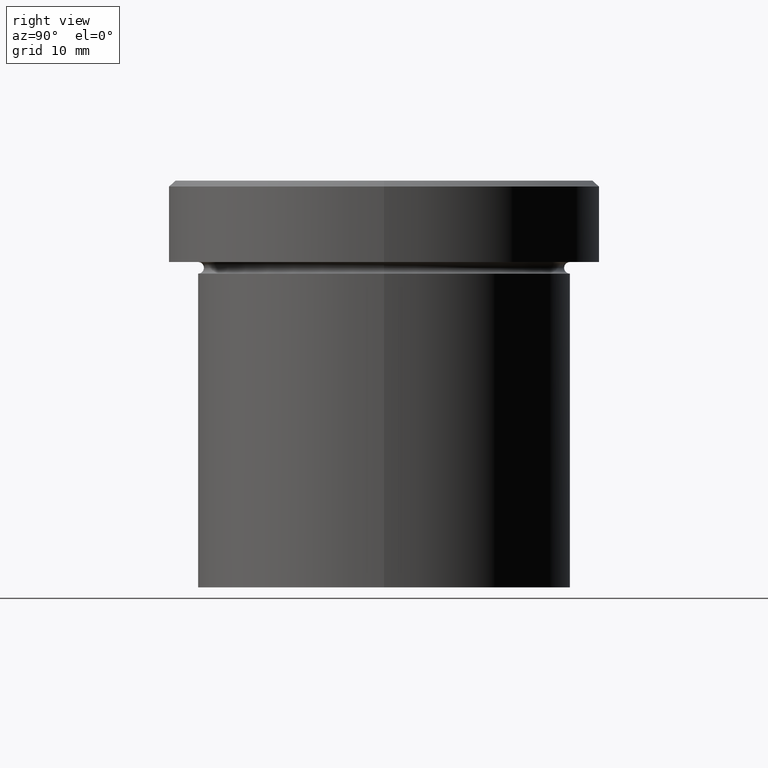
[diagram: clean part render]
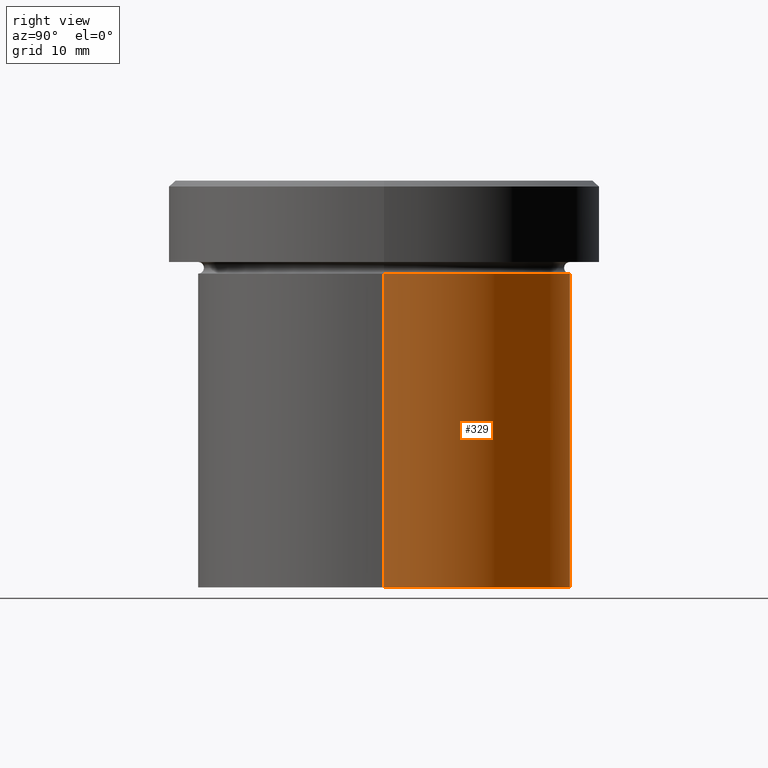
[diagram: same view with one face highlighted and labeled with its STEP entity id]
A machine part, right view. The second image highlights one B-rep face of the part: STEP entity #329.
In plain terms, the highlighted cylindrical surface (partial cylindrical patch) has radius 16 mm, axis along (-0, -0, 1).
Its self-contained STEP definition (entity closure, byte-faithful):
#7 = CYLINDRICAL_SURFACE ( 'NONE', #232, 16.00000000000000000 ) ;
#10 = VERTEX_POINT ( 'NONE', #344 ) ;
#12 = ORIENTED_EDGE ( 'NONE', *, *, #263, .F. ) ;
#13 = VERTEX_POINT ( 'NONE', #191 ) ;
#31 = CARTESIAN_POINT ( 'NONE',  ( 0.000000000000000000, 0.000000000000000000, -35.00000000000000000 ) ) ;
#37 = DIRECTION ( 'NONE',  ( 1.000000000000000000, 0.000000000000000000, 0.000000000000000000 ) ) ;
#54 = CIRCLE ( 'NONE', #290, 16.00000000000000000 ) ;
#62 = CARTESIAN_POINT ( 'NONE',  ( 0.000000000000000000, 0.000000000000000000, 0.000000000000000000 ) ) ;
#79 = EDGE_CURVE ( 'NONE', #230, #229, #356, .T. ) ;
#92 = EDGE_CURVE ( 'NONE', #10, #229, #96, .T. ) ;
#96 = CIRCLE ( 'NONE', #179, 16.00000000000000000 ) ;
#98 = FACE_OUTER_BOUND ( 'NONE', #397, .T. ) ;
#108 = VECTOR ( 'NONE', #282, 1000.000000000000000 ) ;
#129 = DIRECTION ( 'NONE',  ( -0.000000000000000000, -0.000000000000000000, 1.000000000000000000 ) ) ;
#152 = CARTESIAN_POINT ( 'NONE',  ( -16.00000000000000000, 1.959434878635765131E-15, -8.000000000000000000 ) ) ;
#174 = ORIENTED_EDGE ( 'NONE', *, *, #92, .F. ) ;
#179 = AXIS2_PLACEMENT_3D ( 'NONE', #292, #199, #37 ) ;
#191 = CARTESIAN_POINT ( 'NONE',  ( 16.00000000000000000, 0.000000000000000000, -35.00000000000000000 ) ) ;
#194 = DIRECTION ( 'NONE',  ( 1.000000000000000000, 0.000000000000000000, 0.000000000000000000 ) ) ;
#199 = DIRECTION ( 'NONE',  ( -0.000000000000000000, -0.000000000000000000, 1.000000000000000000 ) ) ;
#221 = LINE ( 'NONE', #311, #108 ) ;
#229 = VERTEX_POINT ( 'NONE', #152 ) ;
#230 = VERTEX_POINT ( 'NONE', #375 ) ;
#232 = AXIS2_PLACEMENT_3D ( 'NONE', #62, #247, #357 ) ;
#245 = CARTESIAN_POINT ( 'NONE',  ( -16.00000000000000000, 1.959434878635765131E-15, 0.000000000000000000 ) ) ;
#247 = DIRECTION ( 'NONE',  ( -0.000000000000000000, -0.000000000000000000, 1.000000000000000000 ) ) ;
#261 = ORIENTED_EDGE ( 'NONE', *, *, #79, .T. ) ;
#263 = EDGE_CURVE ( 'NONE', #13, #10, #221, .T. ) ;
#282 = DIRECTION ( 'NONE',  ( -0.000000000000000000, -0.000000000000000000, 1.000000000000000000 ) ) ;
#290 = AXIS2_PLACEMENT_3D ( 'NONE', #31, #129, #194 ) ;
#292 = CARTESIAN_POINT ( 'NONE',  ( 0.000000000000000000, 0.000000000000000000, -8.000000000000000000 ) ) ;
#311 = CARTESIAN_POINT ( 'NONE',  ( 16.00000000000000000, 0.000000000000000000, 0.000000000000000000 ) ) ;
#329 = ADVANCED_FACE ( 'NONE', ( #98 ), #7, .T. ) ;
#344 = CARTESIAN_POINT ( 'NONE',  ( 16.00000000000000000, 0.000000000000000000, -8.000000000000000000 ) ) ;
#356 = LINE ( 'NONE', #245, #370 ) ;
#357 = DIRECTION ( 'NONE',  ( 1.000000000000000000, 0.000000000000000000, 0.000000000000000000 ) ) ;
#367 = ORIENTED_EDGE ( 'NONE', *, *, #402, .T. ) ;
#370 = VECTOR ( 'NONE', #379, 1000.000000000000000 ) ;
#375 = CARTESIAN_POINT ( 'NONE',  ( -16.00000000000000000, 1.959434878635765131E-15, -35.00000000000000000 ) ) ;
#379 = DIRECTION ( 'NONE',  ( -0.000000000000000000, -0.000000000000000000, 1.000000000000000000 ) ) ;
#397 = EDGE_LOOP ( 'NONE', ( #367, #261, #174, #12 ) ) ;
#402 = EDGE_CURVE ( 'NONE', #13, #230, #54, .T. ) ;